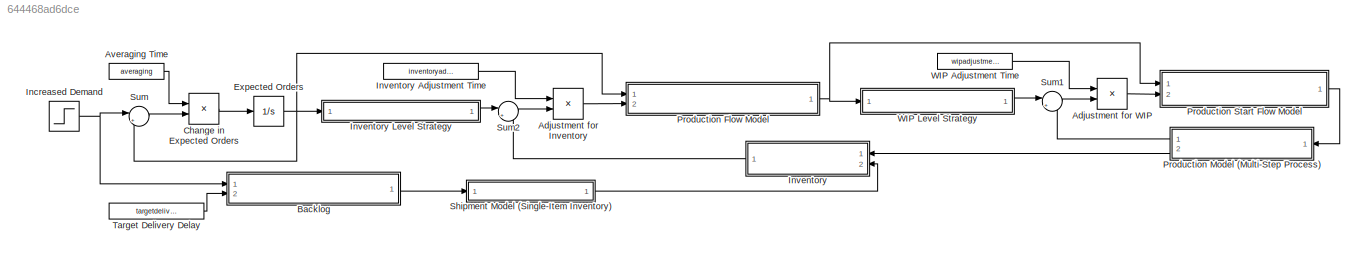
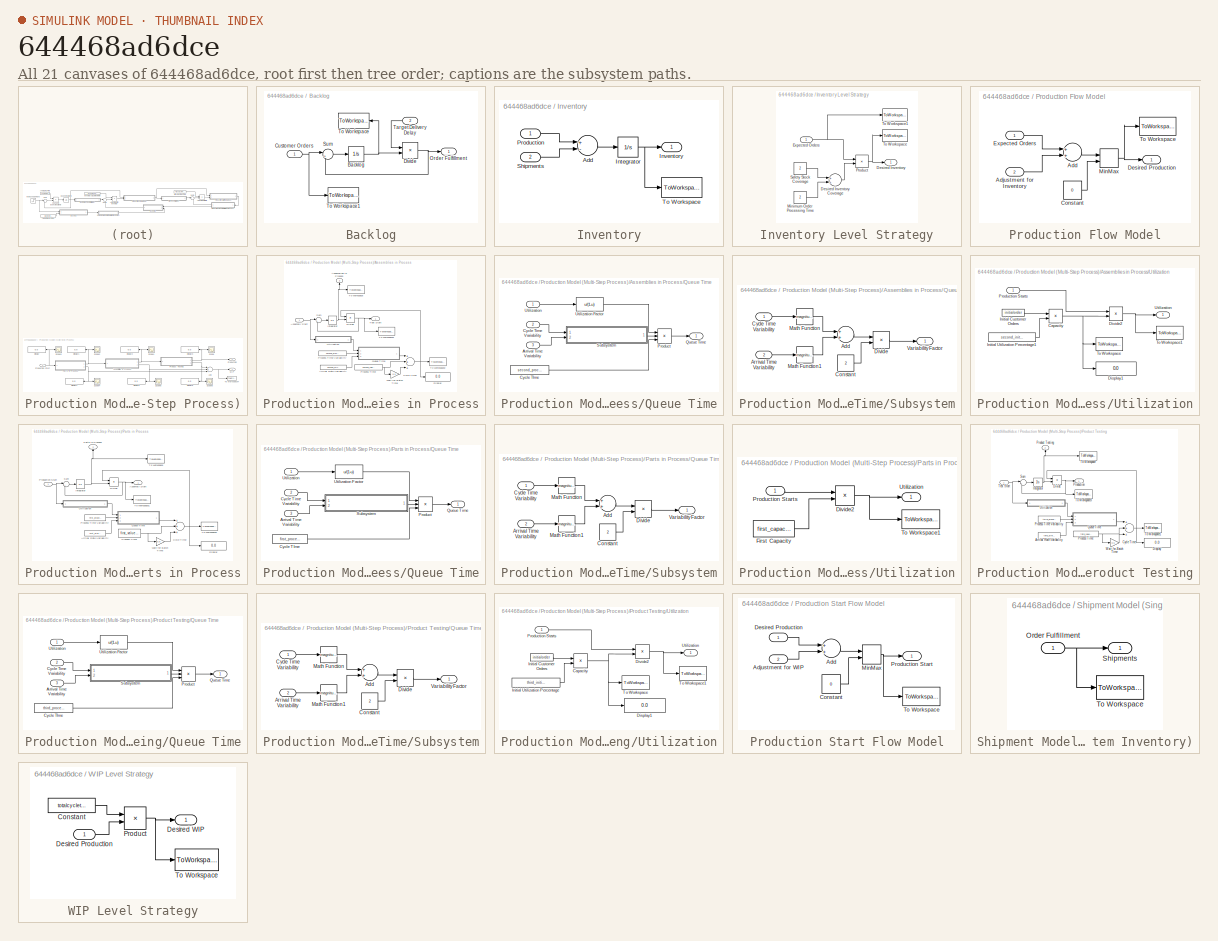
[diagram: thumbnail index - all 21 canvases of the model, root first then tree order]
MODEL slx_644468ad6dce
KIND model
CONFIG AbsTol = auto
CONFIG FixedStep = 0.1
CONFIG MaxStep = auto
CONFIG MinStep = auto
CONFIG RelTol = 1e-3
CONFIG SampleTimeConstraint = Unconstrained
CONFIG Solver = FixedStepAuto
CONFIG SolverMode = Auto
CONFIG SolverName = FixedStepAuto
CONFIG StartTime = 0.0
CONFIG StopTime = 40
BLOCK [Product] Adjustment for Inventory
  InputSameDT = off
  Inputs = /*
  OutDataTypeStr = Inherit: Inherit via internal rule
  Ports = [2, 1]
  RndMeth = Floor
  SaturateOnIntegerOverflow = off
BLOCK [Product] Adjustment for WIP
  InputSameDT = off
  Inputs = /*
  OutDataTypeStr = Inherit: Inherit via internal rule
  Ports = [2, 1]
  RndMeth = Floor
  SaturateOnIntegerOverflow = off
BLOCK [Constant] Averaging Time
  Value = averaging
BLOCK [SubSystem] Backlog
  Ports = [2, 1]
  RequestExecContextInheritance = off
  Variant = off
BLOCK [Integrator] Backlog/Backlog
  InitialCondition = 20000
  Ports = [1, 1]
BLOCK [Inport] Backlog/Customer Orders
  IconDisplay = Port number
BLOCK [Product] Backlog/Divide
  InputSameDT = off
  Inputs = /*
  OutDataTypeStr = Inherit: Inherit via internal rule
  Ports = [2, 1]
  RndMeth = Floor
  SaturateOnIntegerOverflow = off
BLOCK [Outport] Backlog/Order Fulfillment
  IconDisplay = Port number
BLOCK [Sum] Backlog/Sum
  IconShape = round
  InputSameDT = off
  Inputs = |+-
  OutDataTypeStr = Inherit: Inherit via internal rule
  Ports = [2, 1]
  SaturateOnIntegerOverflow = off
BLOCK [Inport] Backlog/Target Delivery Delay
  IconDisplay = Port number
  Port = 2
BLOCK [ToWorkspace] Backlog/To Workspace
  FixptAsFi = on
  MaxDataPoints = inf
  Ports = [1]
  SampleTime = -1
  Save2DSignal = 3-D array (concatenate along third dimension)
  SaveFormat = Timeseries
  VariableName = backlog
BLOCK [ToWorkspace] Backlog/To Workspace1
  FixptAsFi = on
  MaxDataPoints = inf
  Ports = [1]
  SampleTime = -1
  Save2DSignal = 3-D array (concatenate along third dimension)
  SaveFormat = Timeseries
  VariableName = customerorders
BLOCK [Product] Change in Expected Orders
  InputSameDT = off
  Inputs = /*
  OutDataTypeStr = Inherit: Inherit via internal rule
  Ports = [2, 1]
  RndMeth = Floor
  SaturateOnIntegerOverflow = off
BLOCK [Integrator] Expected Orders
  InitialCondition = 10000
  Ports = [1, 1]
BLOCK [Step] Increased Demand
  After = finalorder
  Before = initialorder
  SampleTime = 0.1
  Time = steptime
BLOCK [SubSystem] Inventory
  Ports = [2, 1]
  RequestExecContextInheritance = off
  Variant = off
BLOCK [Constant] Inventory  Adjustment Time
  Value = inventoryadjustment
BLOCK [SubSystem] Inventory Level Strategy
  Ports = [1, 1]
  RequestExecContextInheritance = off
  Variant = off
BLOCK [Outport] Inventory Level Strategy/Desired Inventory
  IconDisplay = Port number
BLOCK [Sum] Inventory Level Strategy/Desired Inventory Coverage
  InputSameDT = off
  OutDataTypeStr = Inherit: Inherit via internal rule
  Ports = [2, 1]
  SaturateOnIntegerOverflow = off
BLOCK [Inport] Inventory Level Strategy/Expected Orders
  IconDisplay = Port number
BLOCK [Constant] Inventory Level Strategy/Minimum Order Processing Time
  Value = 2
BLOCK [Product] Inventory Level Strategy/Product
  InputSameDT = off
  OutDataTypeStr = Inherit: Inherit via internal rule
  Ports = [2, 1]
  RndMeth = Floor
  SaturateOnIntegerOverflow = off
BLOCK [Constant] Inventory Level Strategy/Safety Stock Coverage
  Value = 2
BLOCK [ToWorkspace] Inventory Level Strategy/To Workspace
  FixptAsFi = on
  MaxDataPoints = inf
  Ports = [1]
  SampleTime = -1
  Save2DSignal = 3-D array (concatenate along third dimension)
  SaveFormat = Timeseries
  VariableName = desiredinventory
BLOCK [ToWorkspace] Inventory Level Strategy/To Workspace1
  FixptAsFi = on
  MaxDataPoints = inf
  Ports = [1]
  SampleTime = -1
  Save2DSignal = 3-D array (concatenate along third dimension)
  SaveFormat = Timeseries
  VariableName = expectedorders
BLOCK [Sum] Inventory/Add
  InputSameDT = off
  Inputs = +-
  OutDataTypeStr = Inherit: Inherit via internal rule
  Ports = [2, 1]
  SaturateOnIntegerOverflow = off
BLOCK [Integrator] Inventory/Integrator
  InitialCondition = 40000
  Ports = [1, 1]
BLOCK [Outport] Inventory/Inventory
  IconDisplay = Port number
BLOCK [Inport] Inventory/Production
  IconDisplay = Port number
BLOCK [Inport] Inventory/Shipments
  IconDisplay = Port number
  Port = 2
BLOCK [ToWorkspace] Inventory/To Workspace
  FixptAsFi = on
  MaxDataPoints = inf
  Ports = [1]
  SampleTime = -1
  Save2DSignal = 3-D array (concatenate along third dimension)
  SaveFormat = Timeseries
  VariableName = inventory
BLOCK [SubSystem] Production Flow Model
  Ports = [2, 1]
  RequestExecContextInheritance = off
  Variant = off
BLOCK [Sum] Production Flow Model/Add
  InputSameDT = off
  OutDataTypeStr = Inherit: Inherit via internal rule
  Ports = [2, 1]
  SaturateOnIntegerOverflow = off
BLOCK [Inport] Production Flow Model/Adjustment for Inventory
  IconDisplay = Port number
  Port = 2
BLOCK [Constant] Production Flow Model/Constant
  Value = 0
BLOCK [Outport] Production Flow Model/Desired Production
  IconDisplay = Port number
BLOCK [Inport] Production Flow Model/Expected Orders
  IconDisplay = Port number
BLOCK [MinMax] Production Flow Model/MinMax
  Function = max
  InputSameDT = off
  Inputs = 2
  Ports = [2, 1]
  SaturateOnIntegerOverflow = off
BLOCK [ToWorkspace] Production Flow Model/To Workspace
  FixptAsFi = on
  MaxDataPoints = inf
  Ports = [1]
  SampleTime = -1
  Save2DSignal = 3-D array (concatenate along third dimension)
  SaveFormat = Timeseries
  VariableName = desiredproduction
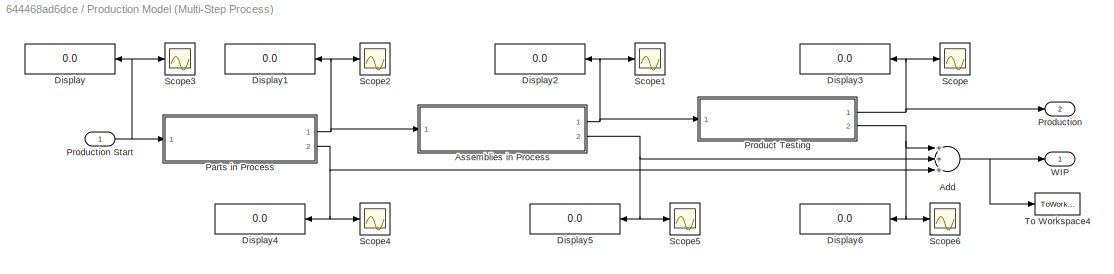
BLOCK [SubSystem] Production Model (Multi-Step Process)
  Ports = [1, 2]
  RequestExecContextInheritance = off
  Variant = off
BLOCK [Sum] Production Model (Multi-Step Process)/Add
  InputSameDT = off
  Inputs = +++
  OutDataTypeStr = Inherit: Inherit via internal rule
  Ports = [3, 1]
  SaturateOnIntegerOverflow = off
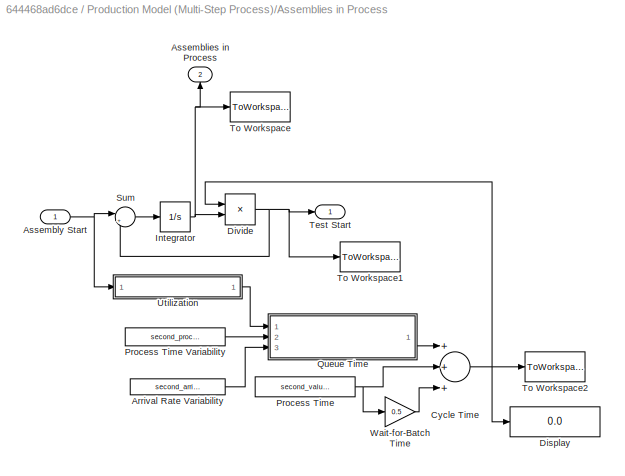
BLOCK [SubSystem] Production Model (Multi-Step Process)/Assemblies in Process
  Ports = [1, 2]
  RequestExecContextInheritance = off
  Variant = off
BLOCK [Constant] Production Model (Multi-Step Process)/Assemblies in Process/Arrival Rate Variability
  Value = second_arrivalvar
BLOCK [Outport] Production Model (Multi-Step Process)/Assemblies in Process/Assemblies in Process
  IconDisplay = Port number
  Port = 2
BLOCK [Inport] Production Model (Multi-Step Process)/Assemblies in Process/Assembly Start
  IconDisplay = Port number
BLOCK [Sum] Production Model (Multi-Step Process)/Assemblies in Process/Cycle Time
  InputSameDT = off
  Inputs = +++
  OutDataTypeStr = Inherit: Inherit via internal rule
  Ports = [3, 1]
  SaturateOnIntegerOverflow = off
BLOCK [Display] Production Model (Multi-Step Process)/Assemblies in Process/Display
  Decimation = 1
  Ports = [1]
BLOCK [Product] Production Model (Multi-Step Process)/Assemblies in Process/Divide
  InputSameDT = off
  Inputs = /*
  OutDataTypeStr = Inherit: Inherit via internal rule
  Ports = [2, 1]
  RndMeth = Floor
  SaturateOnIntegerOverflow = off
BLOCK [Integrator] Production Model (Multi-Step Process)/Assemblies in Process/Integrator
  InitialCondition = initialorder*totalcycletime/3
  Ports = [1, 1]
BLOCK [Constant] Production Model (Multi-Step Process)/Assemblies in Process/Process Time
  Value = second_valueaddtime
BLOCK [Constant] Production Model (Multi-Step Process)/Assemblies in Process/Process Time Variability
  Value = second_processvar
BLOCK [SubSystem] Production Model (Multi-Step Process)/Assemblies in Process/Queue Time
  Ports = [3, 1]
  RequestExecContextInheritance = off
  Variant = off
BLOCK [Inport] Production Model (Multi-Step Process)/Assemblies in Process/Queue Time/Arrival Time Variability
  IconDisplay = Port number
  Port = 3
BLOCK [Constant] Production Model (Multi-Step Process)/Assemblies in Process/Queue Time/Cycle TIme
  Value = second_processtime
BLOCK [Inport] Production Model (Multi-Step Process)/Assemblies in Process/Queue Time/Cycle Time Variability
  IconDisplay = Port number
  Port = 2
BLOCK [Product] Production Model (Multi-Step Process)/Assemblies in Process/Queue Time/Product
  InputSameDT = off
  Inputs = 3
  OutDataTypeStr = Inherit: Inherit via internal rule
  Ports = [3, 1]
  RndMeth = Floor
  SaturateOnIntegerOverflow = off
BLOCK [Outport] Production Model (Multi-Step Process)/Assemblies in Process/Queue Time/Queue Time
  IconDisplay = Port number
BLOCK [SubSystem] Production Model (Multi-Step Process)/Assemblies in Process/Queue Time/Subsystem
  Ports = [2, 1]
  RequestExecContextInheritance = off
  Variant = off
BLOCK [Sum] Production Model (Multi-Step Process)/Assemblies in Process/Queue Time/Subsystem/Add
  InputSameDT = off
  OutDataTypeStr = Inherit: Inherit via internal rule
  Ports = [2, 1]
  SaturateOnIntegerOverflow = off
BLOCK [Inport] Production Model (Multi-Step Process)/Assemblies in Process/Queue Time/Subsystem/Arrival Time Variability
  IconDisplay = Port number
  Port = 2
BLOCK [Constant] Production Model (Multi-Step Process)/Assemblies in Process/Queue Time/Subsystem/Constant
  Value = 2
BLOCK [Inport] Production Model (Multi-Step Process)/Assemblies in Process/Queue Time/Subsystem/Cycle Time Variability
  IconDisplay = Port number
BLOCK [Product] Production Model (Multi-Step Process)/Assemblies in Process/Queue Time/Subsystem/Divide
  InputSameDT = off
  Inputs = */
  OutDataTypeStr = Inherit: Inherit via internal rule
  Ports = [2, 1]
  RndMeth = Floor
  SaturateOnIntegerOverflow = off
BLOCK [Math] Production Model (Multi-Step Process)/Assemblies in Process/Queue Time/Subsystem/Math Function
  Operator = magnitude^2
  Ports = [1, 1]
BLOCK [Math] Production Model (Multi-Step Process)/Assemblies in Process/Queue Time/Subsystem/Math Function1
  Operator = magnitude^2
  Ports = [1, 1]
BLOCK [Outport] Production Model (Multi-Step Process)/Assemblies in Process/Queue Time/Subsystem/Variability Factor
  IconDisplay = Port number
BLOCK [Inport] Production Model (Multi-Step Process)/Assemblies in Process/Queue Time/Utilization
  IconDisplay = Port number
BLOCK [Fcn] Production Model (Multi-Step Process)/Assemblies in Process/Queue Time/Utilization Factor
  Expr = u/(1-u)
BLOCK [Sum] Production Model (Multi-Step Process)/Assemblies in Process/Sum
  IconShape = round
  InputSameDT = off
  Inputs = |+-
  OutDataTypeStr = Inherit: Inherit via internal rule
  Ports = [2, 1]
  SaturateOnIntegerOverflow = off
BLOCK [Outport] Production Model (Multi-Step Process)/Assemblies in Process/Test Start
  IconDisplay = Port number
BLOCK [ToWorkspace] Production Model (Multi-Step Process)/Assemblies in Process/To Workspace
  FixptAsFi = on
  MaxDataPoints = inf
  Ports = [1]
  SampleTime = -1
  Save2DSignal = 3-D array (concatenate along third dimension)
  SaveFormat = Timeseries
  VariableName = second_productionstep
BLOCK [ToWorkspace] Production Model (Multi-Step Process)/Assemblies in Process/To Workspace1
  FixptAsFi = on
  MaxDataPoints = inf
  Ports = [1]
  SampleTime = -1
  Save2DSignal = 3-D array (concatenate along third dimension)
  SaveFormat = Timeseries
  VariableName = second_outflow
BLOCK [ToWorkspace] Production Model (Multi-Step Process)/Assemblies in Process/To Workspace2
  FixptAsFi = on
  MaxDataPoints = inf
  Ports = [1]
  SampleTime = -1
  Save2DSignal = 3-D array (concatenate along third dimension)
  SaveFormat = Timeseries
  VariableName = second_cycletime
BLOCK [SubSystem] Production Model (Multi-Step Process)/Assemblies in Process/Utilization
  Ports = [1, 1]
  RequestExecContextInheritance = off
  Variant = off
BLOCK [Product] Production Model (Multi-Step Process)/Assemblies in Process/Utilization/Capacity
  InputSameDT = off
  Inputs = */
  OutDataTypeStr = Inherit: Inherit via internal rule
  Ports = [2, 1]
  RndMeth = Floor
  SaturateOnIntegerOverflow = off
BLOCK [Display] Production Model (Multi-Step Process)/Assemblies in Process/Utilization/Display1
  Decimation = 1
  Ports = [1]
BLOCK [Product] Production Model (Multi-Step Process)/Assemblies in Process/Utilization/Divide2
  InputSameDT = off
  Inputs = */
  OutDataTypeStr = Inherit: Inherit via internal rule
  Ports = [2, 1]
  RndMeth = Floor
  SaturateOnIntegerOverflow = off
BLOCK [Constant] Production Model (Multi-Step Process)/Assemblies in Process/Utilization/Initial Customer Orders
  Value = initialorder
BLOCK [Constant] Production Model (Multi-Step Process)/Assemblies in Process/Utilization/Initial Utilization Percentage1
  Value = second_initialcapacity
BLOCK [Inport] Production Model (Multi-Step Process)/Assemblies in Process/Utilization/Production Starts
  IconDisplay = Port number
BLOCK [ToWorkspace] Production Model (Multi-Step Process)/Assemblies in Process/Utilization/To Workspace
  FixptAsFi = on
  MaxDataPoints = inf
  Ports = [1]
  SampleTime = -1
  Save2DSignal = 3-D array (concatenate along third dimension)
  SaveFormat = Timeseries
  VariableName = second_capacity
BLOCK [ToWorkspace] Production Model (Multi-Step Process)/Assemblies in Process/Utilization/To Workspace1
  FixptAsFi = on
  MaxDataPoints = inf
  Ports = [1]
  SampleTime = -1
  Save2DSignal = 3-D array (concatenate along third dimension)
  SaveFormat = Timeseries
  VariableName = second_utilization
BLOCK [Outport] Production Model (Multi-Step Process)/Assemblies in Process/Utilization/Utilization
  IconDisplay = Port number
BLOCK [Gain] Production Model (Multi-Step Process)/Assemblies in Process/Wait-for-Batch Time
  Gain = 0.5
  OutDataTypeStr = Inherit: Inherit via internal rule
  ParamDataTypeStr = Inherit: Inherit via internal rule
  SaturateOnIntegerOverflow = off
BLOCK [Display] Production Model (Multi-Step Process)/Display
  Decimation = 1
  Ports = [1]
BLOCK [Display] Production Model (Multi-Step Process)/Display1
  Decimation = 1
  Ports = [1]
BLOCK [Display] Production Model (Multi-Step Process)/Display2
  Decimation = 1
  Ports = [1]
BLOCK [Display] Production Model (Multi-Step Process)/Display3
  Decimation = 1
  Ports = [1]
BLOCK [Display] Production Model (Multi-Step Process)/Display4
  Decimation = 1
  Ports = [1]
BLOCK [Display] Production Model (Multi-Step Process)/Display5
  Decimation = 1
  Ports = [1]
BLOCK [Display] Production Model (Multi-Step Process)/Display6
  Decimation = 1
  Ports = [1]
BLOCK [SubSystem] Production Model (Multi-Step Process)/Parts in Process
  Ports = [1, 2]
  RequestExecContextInheritance = off
  Variant = off
BLOCK [Constant] Production Model (Multi-Step Process)/Parts in Process/Arrival Rate Variability
  Value = first_arrivalvar
BLOCK [Outport] Production Model (Multi-Step Process)/Parts in Process/Assembly Start
  IconDisplay = Port number
BLOCK [Sum] Production Model (Multi-Step Process)/Parts in Process/Cycle Time
  InputSameDT = off
  Inputs = +++
  OutDataTypeStr = Inherit: Inherit via internal rule
  Ports = [3, 1]
  SaturateOnIntegerOverflow = off
BLOCK [Display] Production Model (Multi-Step Process)/Parts in Process/Display
  Decimation = 1
  Ports = [1]
BLOCK [Product] Production Model (Multi-Step Process)/Parts in Process/Divide
  InputSameDT = off
  Inputs = /*
  OutDataTypeStr = Inherit: Inherit via internal rule
  Ports = [2, 1]
  RndMeth = Floor
  SaturateOnIntegerOverflow = off
BLOCK [Integrator] Production Model (Multi-Step Process)/Parts in Process/Integrator
  InitialCondition = initialorder*totalcycletime/3
  Ports = [1, 1]
BLOCK [Outport] Production Model (Multi-Step Process)/Parts in Process/Parts in Process
  IconDisplay = Port number
  Port = 2
BLOCK [Constant] Production Model (Multi-Step Process)/Parts in Process/Process Time
  Value = first_valueaddtime
BLOCK [Constant] Production Model (Multi-Step Process)/Parts in Process/Process Time Variability
  Value = first_processvar
BLOCK [Inport] Production Model (Multi-Step Process)/Parts in Process/Production Start
  IconDisplay = Port number
BLOCK [SubSystem] Production Model (Multi-Step Process)/Parts in Process/Queue Time
  Ports = [3, 1]
  RequestExecContextInheritance = off
  Variant = off
BLOCK [Inport] Production Model (Multi-Step Process)/Parts in Process/Queue Time/Arrival Time Variability
  IconDisplay = Port number
  Port = 3
BLOCK [Constant] Production Model (Multi-Step Process)/Parts in Process/Queue Time/Cycle TIme
  Value = first_processtime
BLOCK [Inport] Production Model (Multi-Step Process)/Parts in Process/Queue Time/Cycle Time Variability
  IconDisplay = Port number
  Port = 2
BLOCK [Product] Production Model (Multi-Step Process)/Parts in Process/Queue Time/Product
  InputSameDT = off
  Inputs = 3
  OutDataTypeStr = Inherit: Inherit via internal rule
  Ports = [3, 1]
  RndMeth = Floor
  SaturateOnIntegerOverflow = off
BLOCK [Outport] Production Model (Multi-Step Process)/Parts in Process/Queue Time/Queue Time
  IconDisplay = Port number
BLOCK [SubSystem] Production Model (Multi-Step Process)/Parts in Process/Queue Time/Subsystem
  Ports = [2, 1]
  RequestExecContextInheritance = off
  Variant = off
BLOCK [Sum] Production Model (Multi-Step Process)/Parts in Process/Queue Time/Subsystem/Add
  InputSameDT = off
  OutDataTypeStr = Inherit: Inherit via internal rule
  Ports = [2, 1]
  SaturateOnIntegerOverflow = off
BLOCK [Inport] Production Model (Multi-Step Process)/Parts in Process/Queue Time/Subsystem/Arrival Time Variability
  IconDisplay = Port number
  Port = 2
BLOCK [Constant] Production Model (Multi-Step Process)/Parts in Process/Queue Time/Subsystem/Constant
  Value = 2
BLOCK [Inport] Production Model (Multi-Step Process)/Parts in Process/Queue Time/Subsystem/Cycle Time Variability
  IconDisplay = Port number
BLOCK [Product] Production Model (Multi-Step Process)/Parts in Process/Queue Time/Subsystem/Divide
  InputSameDT = off
  Inputs = */
  OutDataTypeStr = Inherit: Inherit via internal rule
  Ports = [2, 1]
  RndMeth = Floor
  SaturateOnIntegerOverflow = off
BLOCK [Math] Production Model (Multi-Step Process)/Parts in Process/Queue Time/Subsystem/Math Function
  Operator = magnitude^2
  Ports = [1, 1]
BLOCK [Math] Production Model (Multi-Step Process)/Parts in Process/Queue Time/Subsystem/Math Function1
  Operator = magnitude^2
  Ports = [1, 1]
BLOCK [Outport] Production Model (Multi-Step Process)/Parts in Process/Queue Time/Subsystem/Variability Factor
  IconDisplay = Port number
BLOCK [Inport] Production Model (Multi-Step Process)/Parts in Process/Queue Time/Utilization
  IconDisplay = Port number
BLOCK [Fcn] Production Model (Multi-Step Process)/Parts in Process/Queue Time/Utilization Factor
  Expr = u/(1-u)
BLOCK [Sum] Production Model (Multi-Step Process)/Parts in Process/Sum
  IconShape = round
  InputSameDT = off
  Inputs = |+-
  OutDataTypeStr = Inherit: Inherit via internal rule
  Ports = [2, 1]
  SaturateOnIntegerOverflow = off
BLOCK [ToWorkspace] Production Model (Multi-Step Process)/Parts in Process/To Workspace
  FixptAsFi = on
  MaxDataPoints = inf
  Ports = [1]
  SampleTime = -1
  Save2DSignal = 3-D array (concatenate along third dimension)
  SaveFormat = Timeseries
  VariableName = first_productionstep
BLOCK [ToWorkspace] Production Model (Multi-Step Process)/Parts in Process/To Workspace1
  FixptAsFi = on
  MaxDataPoints = inf
  Ports = [1]
  SampleTime = -1
  Save2DSignal = 3-D array (concatenate along third dimension)
  SaveFormat = Timeseries
  VariableName = first_outflow
BLOCK [ToWorkspace] Production Model (Multi-Step Process)/Parts in Process/To Workspace2
  FixptAsFi = on
  MaxDataPoints = inf
  Ports = [1]
  SampleTime = -1
  Save2DSignal = 3-D array (concatenate along third dimension)
  SaveFormat = Timeseries
  VariableName = first_cycletime
BLOCK [SubSystem] Production Model (Multi-Step Process)/Parts in Process/Utilization
  Ports = [1, 1]
  RequestExecContextInheritance = off
  Variant = off
BLOCK [Product] Production Model (Multi-Step Process)/Parts in Process/Utilization/Divide2
  InputSameDT = off
  Inputs = */
  OutDataTypeStr = Inherit: Inherit via internal rule
  Ports = [2, 1]
  RndMeth = Floor
  SaturateOnIntegerOverflow = off
BLOCK [Constant] Production Model (Multi-Step Process)/Parts in Process/Utilization/First Capacity
  Value = first_capacity
BLOCK [Inport] Production Model (Multi-Step Process)/Parts in Process/Utilization/Production Starts
  IconDisplay = Port number
BLOCK [ToWorkspace] Production Model (Multi-Step Process)/Parts in Process/Utilization/To Workspace1
  FixptAsFi = on
  MaxDataPoints = inf
  Ports = [1]
  SampleTime = -1
  Save2DSignal = 3-D array (concatenate along third dimension)
  SaveFormat = Timeseries
  VariableName = first_utilization
BLOCK [Outport] Production Model (Multi-Step Process)/Parts in Process/Utilization/Utilization
  IconDisplay = Port number
BLOCK [Gain] Production Model (Multi-Step Process)/Parts in Process/Wait-for-Batch Time
  Gain = 0.5
  OutDataTypeStr = Inherit: Inherit via internal rule
  ParamDataTypeStr = Inherit: Inherit via internal rule
  SaturateOnIntegerOverflow = off
BLOCK [SubSystem] Production Model (Multi-Step Process)/Product Testing
  Ports = [1, 2]
  RequestExecContextInheritance = off
  Variant = off
BLOCK [Constant] Production Model (Multi-Step Process)/Product Testing/Arrival Rate Variability
  Value = third_arrivalvar
BLOCK [Sum] Production Model (Multi-Step Process)/Product Testing/Cycle Time
  InputSameDT = off
  Inputs = +++
  OutDataTypeStr = Inherit: Inherit via internal rule
  Ports = [3, 1]
  SaturateOnIntegerOverflow = off
BLOCK [Display] Production Model (Multi-Step Process)/Product Testing/Display
  Decimation = 1
  Ports = [1]
BLOCK [Product] Production Model (Multi-Step Process)/Product Testing/Divide
  InputSameDT = off
  Inputs = /*
  OutDataTypeStr = Inherit: Inherit via internal rule
  Ports = [2, 1]
  RndMeth = Floor
  SaturateOnIntegerOverflow = off
BLOCK [Integrator] Production Model (Multi-Step Process)/Product Testing/Integrator
  InitialCondition = initialorder*totalcycletime/3
  Ports = [1, 1]
BLOCK [Constant] Production Model (Multi-Step Process)/Product Testing/Process Time
  Value = third_valueaddtime
BLOCK [Constant] Production Model (Multi-Step Process)/Product Testing/Process Time Variability
  Value = third_processvar
BLOCK [Outport] Production Model (Multi-Step Process)/Product Testing/Product Testing
  IconDisplay = Port number
  Port = 2
BLOCK [Outport] Production Model (Multi-Step Process)/Product Testing/Production
  IconDisplay = Port number
BLOCK [SubSystem] Production Model (Multi-Step Process)/Product Testing/Queue Time
  Ports = [3, 1]
  RequestExecContextInheritance = off
  Variant = off
BLOCK [Inport] Production Model (Multi-Step Process)/Product Testing/Queue Time/Arrival Time Variability
  IconDisplay = Port number
  Port = 3
BLOCK [Constant] Production Model (Multi-Step Process)/Product Testing/Queue Time/Cycle TIme
  Value = third_processtime
BLOCK [Inport] Production Model (Multi-Step Process)/Product Testing/Queue Time/Cycle Time Variability
  IconDisplay = Port number
  Port = 2
BLOCK [Product] Production Model (Multi-Step Process)/Product Testing/Queue Time/Product
  InputSameDT = off
  Inputs = 3
  OutDataTypeStr = Inherit: Inherit via internal rule
  Ports = [3, 1]
  RndMeth = Floor
  SaturateOnIntegerOverflow = off
BLOCK [Outport] Production Model (Multi-Step Process)/Product Testing/Queue Time/Queue Time
  IconDisplay = Port number
BLOCK [SubSystem] Production Model (Multi-Step Process)/Product Testing/Queue Time/Subsystem
  Ports = [2, 1]
  RequestExecContextInheritance = off
  Variant = off
BLOCK [Sum] Production Model (Multi-Step Process)/Product Testing/Queue Time/Subsystem/Add
  InputSameDT = off
  OutDataTypeStr = Inherit: Inherit via internal rule
  Ports = [2, 1]
  SaturateOnIntegerOverflow = off
BLOCK [Inport] Production Model (Multi-Step Process)/Product Testing/Queue Time/Subsystem/Arrival Time Variability
  IconDisplay = Port number
  Port = 2
BLOCK [Constant] Production Model (Multi-Step Process)/Product Testing/Queue Time/Subsystem/Constant
  Value = 2
BLOCK [Inport] Production Model (Multi-Step Process)/Product Testing/Queue Time/Subsystem/Cycle Time Variability
  IconDisplay = Port number
BLOCK [Product] Production Model (Multi-Step Process)/Product Testing/Queue Time/Subsystem/Divide
  InputSameDT = off
  Inputs = */
  OutDataTypeStr = Inherit: Inherit via internal rule
  Ports = [2, 1]
  RndMeth = Floor
  SaturateOnIntegerOverflow = off
BLOCK [Math] Production Model (Multi-Step Process)/Product Testing/Queue Time/Subsystem/Math Function
  Operator = magnitude^2
  Ports = [1, 1]
BLOCK [Math] Production Model (Multi-Step Process)/Product Testing/Queue Time/Subsystem/Math Function1
  Operator = magnitude^2
  Ports = [1, 1]
BLOCK [Outport] Production Model (Multi-Step Process)/Product Testing/Queue Time/Subsystem/Variability Factor
  IconDisplay = Port number
BLOCK [Inport] Production Model (Multi-Step Process)/Product Testing/Queue Time/Utilization
  IconDisplay = Port number
BLOCK [Fcn] Production Model (Multi-Step Process)/Product Testing/Queue Time/Utilization Factor
  Expr = u/(1-u)
BLOCK [Sum] Production Model (Multi-Step Process)/Product Testing/Sum
  IconShape = round
  InputSameDT = off
  Inputs = |+-
  OutDataTypeStr = Inherit: Inherit via internal rule
  Ports = [2, 1]
  SaturateOnIntegerOverflow = off
BLOCK [Inport] Production Model (Multi-Step Process)/Product Testing/Test Start
  IconDisplay = Port number
BLOCK [ToWorkspace] Production Model (Multi-Step Process)/Product Testing/To Workspace
  FixptAsFi = on
  MaxDataPoints = inf
  Ports = [1]
  SampleTime = -1
  Save2DSignal = 3-D array (concatenate along third dimension)
  SaveFormat = Timeseries
  VariableName = third_productionstep
BLOCK [ToWorkspace] Production Model (Multi-Step Process)/Product Testing/To Workspace1
  FixptAsFi = on
  MaxDataPoints = inf
  Ports = [1]
  SampleTime = -1
  Save2DSignal = 3-D array (concatenate along third dimension)
  SaveFormat = Timeseries
  VariableName = third_cycletime
BLOCK [ToWorkspace] Production Model (Multi-Step Process)/Product Testing/To Workspace3
  FixptAsFi = on
  MaxDataPoints = inf
  Ports = [1]
  SampleTime = -1
  Save2DSignal = 3-D array (concatenate along third dimension)
  SaveFormat = Timeseries
  VariableName = production
BLOCK [SubSystem] Production Model (Multi-Step Process)/Product Testing/Utilization
  Ports = [1, 1]
  RequestExecContextInheritance = off
  Variant = off
BLOCK [Product] Production Model (Multi-Step Process)/Product Testing/Utilization/Capacity
  InputSameDT = off
  Inputs = */
  OutDataTypeStr = Inherit: Inherit via internal rule
  Ports = [2, 1]
  RndMeth = Floor
  SaturateOnIntegerOverflow = off
BLOCK [Display] Production Model (Multi-Step Process)/Product Testing/Utilization/Display1
  Decimation = 1
  Ports = [1]
BLOCK [Product] Production Model (Multi-Step Process)/Product Testing/Utilization/Divide2
  InputSameDT = off
  Inputs = */
  OutDataTypeStr = Inherit: Inherit via internal rule
  Ports = [2, 1]
  RndMeth = Floor
  SaturateOnIntegerOverflow = off
BLOCK [Constant] Production Model (Multi-Step Process)/Product Testing/Utilization/Initial Customer Orders
  Value = initialorder
BLOCK [Constant] Production Model (Multi-Step Process)/Product Testing/Utilization/Initial Utilization Percentage
  Value = third_initialcapacity
BLOCK [Inport] Production Model (Multi-Step Process)/Product Testing/Utilization/Production Starts
  IconDisplay = Port number
BLOCK [ToWorkspace] Production Model (Multi-Step Process)/Product Testing/Utilization/To Workspace
  FixptAsFi = on
  MaxDataPoints = inf
  Ports = [1]
  SampleTime = -1
  Save2DSignal = 3-D array (concatenate along third dimension)
  SaveFormat = Timeseries
  VariableName = third_capacity
BLOCK [ToWorkspace] Production Model (Multi-Step Process)/Product Testing/Utilization/To Workspace1
  FixptAsFi = on
  MaxDataPoints = inf
  Ports = [1]
  SampleTime = -1
  Save2DSignal = 3-D array (concatenate along third dimension)
  SaveFormat = Timeseries
  VariableName = third_utilization
BLOCK [Outport] Production Model (Multi-Step Process)/Product Testing/Utilization/Utilization
  IconDisplay = Port number
BLOCK [Gain] Production Model (Multi-Step Process)/Product Testing/Wait-for-Batch Time
  Gain = 0.5
  OutDataTypeStr = Inherit: Inherit via internal rule
  ParamDataTypeStr = Inherit: Inherit via internal rule
  SaturateOnIntegerOverflow = off
BLOCK [Outport] Production Model (Multi-Step Process)/Production
  IconDisplay = Port number
  Port = 2
BLOCK [Inport] Production Model (Multi-Step Process)/Production Start
  IconDisplay = Port number
BLOCK [Scope] Production Model (Multi-Step Process)/Scope
  Ports = [1]
  ScopeSpecificationString = Simulink.scopes.TimeScopeBlockCfg('CurrentConfiguration', extmgr.ConfigurationSet(extmgr.Configuration('Core','General UI',true),extmgr.Configuration('Core','Source UI',true),extmgr.Configuration('Sources','WiredSimulink',true),extmgr.Configuration('Visuals','Time Domain',true,'SerializedDisplays',{struct('MinYLimReal','9625.73265','MaxYLimReal','13368.40615','YLabelReal','','MinYLimMag','9625.732...<+1363ch>
BLOCK [Scope] Production Model (Multi-Step Process)/Scope1
  Ports = [1]
  ScopeSpecificationString = Simulink.scopes.TimeScopeBlockCfg('CurrentConfiguration', extmgr.ConfigurationSet(extmgr.Configuration('Core','General UI',true),extmgr.Configuration('Core','Source UI',true),extmgr.Configuration('Sources','WiredSimulink',true,'DataLoggingVariableName','ScopeData1'),extmgr.Configuration('Visuals','Time Domain',true,'SerializedDisplays',{struct('MinYLimReal','9610.08845','MaxYLimReal','13509.20396'...<+1408ch>
BLOCK [Scope] Production Model (Multi-Step Process)/Scope2
  Ports = [1]
  ScopeSpecificationString = Simulink.scopes.TimeScopeBlockCfg('CurrentConfiguration', extmgr.ConfigurationSet(extmgr.Configuration('Core','General UI',true),extmgr.Configuration('Core','Source UI',true),extmgr.Configuration('Sources','WiredSimulink',true,'DataLoggingVariableName','ScopeData2'),extmgr.Configuration('Visuals','Time Domain',true,'SerializedDisplays',{struct('MinYLimReal','9588.89295','MaxYLimReal','13699.96344'...<+1403ch>
BLOCK [Scope] Production Model (Multi-Step Process)/Scope3
  Ports = [1]
  ScopeSpecificationString = Simulink.scopes.TimeScopeBlockCfg('CurrentConfiguration', extmgr.ConfigurationSet(extmgr.Configuration('Core','General UI',true),extmgr.Configuration('Core','Source UI',true),extmgr.Configuration('Sources','WiredSimulink',true,'DataLoggingVariableName','ScopeData3'),extmgr.Configuration('Visuals','Time Domain',true,'SerializedDisplays',{struct('MinYLimReal','9556.09037','MaxYLimReal','13995.18668'...<+1401ch>
BLOCK [Scope] Production Model (Multi-Step Process)/Scope4
  Ports = [1]
  ScopeSpecificationString = Simulink.scopes.TimeScopeBlockCfg('CurrentConfiguration', extmgr.ConfigurationSet(extmgr.Configuration('Core','General UI',true),extmgr.Configuration('Core','Source UI',true),extmgr.Configuration('Sources','WiredSimulink',true,'DataLoggingVariableName','ScopeData1'),extmgr.Configuration('Visuals','Time Domain',true,'SerializedDisplays',{struct('MinYLimReal','21574.76591','MaxYLimReal','30827.10685...<+1407ch>
BLOCK [Scope] Production Model (Multi-Step Process)/Scope5
  Ports = [1]
  ScopeSpecificationString = Simulink.scopes.TimeScopeBlockCfg('CurrentConfiguration', extmgr.ConfigurationSet(extmgr.Configuration('Core','General UI',true),extmgr.Configuration('Core','Source UI',true),extmgr.Configuration('Sources','WiredSimulink',true,'DataLoggingVariableName','ScopeData2'),extmgr.Configuration('Visuals','Time Domain',true,'SerializedDisplays',{struct('MinYLimReal','21622.72297','MaxYLimReal','30395.49323...<+1412ch>
BLOCK [Scope] Production Model (Multi-Step Process)/Scope6
  Ports = [1]
  ScopeSpecificationString = Simulink.scopes.TimeScopeBlockCfg('CurrentConfiguration', extmgr.ConfigurationSet(extmgr.Configuration('Core','General UI',true),extmgr.Configuration('Core','Source UI',true),extmgr.Configuration('Sources','WiredSimulink',true,'DataLoggingVariableName','ScopeData3'),extmgr.Configuration('Visuals','Time Domain',true,'SerializedDisplays',{struct('MinYLimReal','21657.54185','MaxYLimReal','30082.12338...<+1406ch>
BLOCK [ToWorkspace] Production Model (Multi-Step Process)/To Workspace4
  FixptAsFi = on
  MaxDataPoints = inf
  Ports = [1]
  SampleTime = -1
  Save2DSignal = 3-D array (concatenate along third dimension)
  SaveFormat = Timeseries
  VariableName = wip
BLOCK [Outport] Production Model (Multi-Step Process)/WIP
  IconDisplay = Port number
BLOCK [SubSystem] Production Start Flow Model
  Ports = [2, 1]
  RequestExecContextInheritance = off
  Variant = off
BLOCK [Sum] Production Start Flow Model/Add
  InputSameDT = off
  OutDataTypeStr = Inherit: Inherit via internal rule
  Ports = [2, 1]
  SaturateOnIntegerOverflow = off
BLOCK [Inport] Production Start Flow Model/Adjustment for WIP
  IconDisplay = Port number
  Port = 2
BLOCK [Constant] Production Start Flow Model/Constant
  Value = 0
BLOCK [Inport] Production Start Flow Model/Desired Production 
  IconDisplay = Port number
BLOCK [MinMax] Production Start Flow Model/MinMax
  Function = max
  InputSameDT = off
  Inputs = 2
  Ports = [2, 1]
  SaturateOnIntegerOverflow = off
BLOCK [Outport] Production Start Flow Model/Production Start
  IconDisplay = Port number
BLOCK [ToWorkspace] Production Start Flow Model/To Workspace
  FixptAsFi = on
  MaxDataPoints = inf
  Ports = [1]
  SampleTime = -1
  Save2DSignal = 3-D array (concatenate along third dimension)
  SaveFormat = Timeseries
  VariableName = productionstart
BLOCK [SubSystem] Shipment Model (Single-Item Inventory)
  Ports = [1, 1]
  RequestExecContextInheritance = off
  Variant = off
BLOCK [Inport] Shipment Model (Single-Item Inventory)/Order Fulfillment
  IconDisplay = Port number
BLOCK [Outport] Shipment Model (Single-Item Inventory)/Shipments
  IconDisplay = Port number
BLOCK [ToWorkspace] Shipment Model (Single-Item Inventory)/To Workspace
  FixptAsFi = on
  MaxDataPoints = inf
  Ports = [1]
  SampleTime = -1
  Save2DSignal = 3-D array (concatenate along third dimension)
  SaveFormat = Timeseries
  VariableName = shipments
BLOCK [Sum] Sum
  IconShape = round
  InputSameDT = off
  Inputs = |+-
  OutDataTypeStr = Inherit: Inherit via internal rule
  Ports = [2, 1]
  SaturateOnIntegerOverflow = off
BLOCK [Sum] Sum1
  IconShape = round
  InputSameDT = off
  Inputs = |+-
  OutDataTypeStr = Inherit: Inherit via internal rule
  Ports = [2, 1]
  SaturateOnIntegerOverflow = off
BLOCK [Sum] Sum2
  IconShape = round
  InputSameDT = off
  Inputs = |+-
  OutDataTypeStr = Inherit: Inherit via internal rule
  Ports = [2, 1]
  SaturateOnIntegerOverflow = off
BLOCK [Constant] Target Delivery Delay
  Value = targetdeliverydelay
BLOCK [Constant] WIP Adjustment Time
  Value = wipadjustment
BLOCK [SubSystem] WIP Level Strategy
  Ports = [1, 1]
  RequestExecContextInheritance = off
  Variant = off
BLOCK [Constant] WIP Level Strategy/Constant
  Value = totalcycletime
BLOCK [Inport] WIP Level Strategy/Desired Production
  IconDisplay = Port number
BLOCK [Outport] WIP Level Strategy/Desired WIP
  IconDisplay = Port number
BLOCK [Product] WIP Level Strategy/Product
  InputSameDT = off
  OutDataTypeStr = Inherit: Inherit via internal rule
  Ports = [2, 1]
  RndMeth = Floor
  SaturateOnIntegerOverflow = off
BLOCK [ToWorkspace] WIP Level Strategy/To Workspace
  FixptAsFi = on
  MaxDataPoints = inf
  Ports = [1]
  SampleTime = -1
  Save2DSignal = 3-D array (concatenate along third dimension)
  SaveFormat = Timeseries
  VariableName = desiredwip
LINE Adjustment for Inventory:1 -> Production Flow Model:2
LINE Adjustment for WIP:1 -> Production Start Flow Model:2
LINE Averaging Time:1 -> Change in Expected Orders:1
NET Backlog/Backlog:1 -> Backlog/Divide:2, Backlog/To Workspace:1
NET Backlog/Customer Orders:1 -> Backlog/Sum:1, Backlog/To Workspace1:1
NET Backlog/Divide:1 -> Backlog/Order Fulfillment:1, Backlog/Sum:2
LINE Backlog/Sum:1 -> Backlog/Backlog:1
LINE Backlog/Target Delivery Delay:1 -> Backlog/Divide:1
LINE Backlog:1 -> Shipment Model (Single-Item Inventory):1
LINE Change in Expected Orders:1 -> Expected Orders:1
NET Expected Orders:1 -> Inventory Level Strategy:1, Production Flow Model:1, Sum:2
NET Increased Demand:1 -> Backlog:1, Sum:1
LINE Inventory  Adjustment Time:1 -> Adjustment for Inventory:1
LINE Inventory Level Strategy/Desired Inventory Coverage:1 -> Inventory Level Strategy/Product:2
NET Inventory Level Strategy/Expected Orders:1 -> Inventory Level Strategy/Product:1, Inventory Level Strategy/To Workspace1:1
LINE Inventory Level Strategy/Minimum Order Processing Time:1 -> Inventory Level Strategy/Desired Inventory Coverage:2
NET Inventory Level Strategy/Product:1 -> Inventory Level Strategy/Desired Inventory:1, Inventory Level Strategy/To Workspace:1
LINE Inventory Level Strategy/Safety Stock Coverage:1 -> Inventory Level Strategy/Desired Inventory Coverage:1
LINE Inventory Level Strategy:1 -> Sum2:1
LINE Inventory/Add:1 -> Inventory/Integrator:1
NET Inventory/Integrator:1 -> Inventory/Inventory:1, Inventory/To Workspace:1
LINE Inventory/Production:1 -> Inventory/Add:1
LINE Inventory/Shipments:1 -> Inventory/Add:2
LINE Inventory:1 -> Sum2:2
LINE Production Flow Model/Add:1 -> Production Flow Model/MinMax:1
LINE Production Flow Model/Adjustment for Inventory:1 -> Production Flow Model/Add:2
LINE Production Flow Model/Constant:1 -> Production Flow Model/MinMax:2
LINE Production Flow Model/Expected Orders:1 -> Production Flow Model/Add:1
NET Production Flow Model/MinMax:1 -> Production Flow Model/Desired Production:1, Production Flow Model/To Workspace:1
NET Production Flow Model:1 -> Production Start Flow Model:1, WIP Level Strategy:1
NET Production Model (Multi-Step Process)/Add:1 -> Production Model (Multi-Step Process)/To Workspace4:1, Production Model (Multi-Step Process)/WIP:1
LINE Production Model (Multi-Step Process)/Assemblies in Process/Arrival Rate Variability:1 -> Production Model (Multi-Step Process)/Assemblies in Process/Queue Time:3
NET Production Model (Multi-Step Process)/Assemblies in Process/Assembly Start:1 -> Production Model (Multi-Step Process)/Assemblies in Process/Sum:1, Production Model (Multi-Step Process)/Assemblies in Process/Utilization:1
NET Production Model (Multi-Step Process)/Assemblies in Process/Cycle Time:1 -> Production Model (Multi-Step Process)/Assemblies in Process/Display:1, Production Model (Multi-Step Process)/Assemblies in Process/Divide:1, Production Model (Multi-Step Process)/Assemblies in Process/To Workspace2:1
NET Production Model (Multi-Step Process)/Assemblies in Process/Divide:1 -> Production Model (Multi-Step Process)/Assemblies in Process/Sum:2, Production Model (Multi-Step Process)/Assemblies in Process/Test Start:1, Production Model (Multi-Step Process)/Assemblies in Process/To Workspace1:1
NET Production Model (Multi-Step Process)/Assemblies in Process/Integrator:1 -> Production Model (Multi-Step Process)/Assemblies in Process/Assemblies in Process:1, Production Model (Multi-Step Process)/Assemblies in Process/Divide:2, Production Model (Multi-Step Process)/Assemblies in Process/To Workspace:1
LINE Production Model (Multi-Step Process)/Assemblies in Process/Process Time Variability:1 -> Production Model (Multi-Step Process)/Assemblies in Process/Queue Time:2
NET Production Model (Multi-Step Process)/Assemblies in Process/Process Time:1 -> Production Model (Multi-Step Process)/Assemblies in Process/Cycle Time:2, Production Model (Multi-Step Process)/Assemblies in Process/Wait-for-Batch Time:1
LINE Production Model (Multi-Step Process)/Assemblies in Process/Queue Time/Arrival Time Variability:1 -> Production Model (Multi-Step Process)/Assemblies in Process/Queue Time/Subsystem:2
LINE Production Model (Multi-Step Process)/Assemblies in Process/Queue Time/Cycle TIme:1 -> Production Model (Multi-Step Process)/Assemblies in Process/Queue Time/Product:3
LINE Production Model (Multi-Step Process)/Assemblies in Process/Queue Time/Cycle Time Variability:1 -> Production Model (Multi-Step Process)/Assemblies in Process/Queue Time/Subsystem:1
LINE Production Model (Multi-Step Process)/Assemblies in Process/Queue Time/Product:1 -> Production Model (Multi-Step Process)/Assemblies in Process/Queue Time/Queue Time:1
LINE Production Model (Multi-Step Process)/Assemblies in Process/Queue Time/Subsystem/Add:1 -> Production Model (Multi-Step Process)/Assemblies in Process/Queue Time/Subsystem/Divide:1
LINE Production Model (Multi-Step Process)/Assemblies in Process/Queue Time/Subsystem/Arrival Time Variability:1 -> Production Model (Multi-Step Process)/Assemblies in Process/Queue Time/Subsystem/Math Function1:1
LINE Production Model (Multi-Step Process)/Assemblies in Process/Queue Time/Subsystem/Constant:1 -> Production Model (Multi-Step Process)/Assemblies in Process/Queue Time/Subsystem/Divide:2
LINE Production Model (Multi-Step Process)/Assemblies in Process/Queue Time/Subsystem/Cycle Time Variability:1 -> Production Model (Multi-Step Process)/Assemblies in Process/Queue Time/Subsystem/Math Function:1
LINE Production Model (Multi-Step Process)/Assemblies in Process/Queue Time/Subsystem/Divide:1 -> Production Model (Multi-Step Process)/Assemblies in Process/Queue Time/Subsystem/Variability Factor:1
LINE Production Model (Multi-Step Process)/Assemblies in Process/Queue Time/Subsystem/Math Function1:1 -> Production Model (Multi-Step Process)/Assemblies in Process/Queue Time/Subsystem/Add:2
LINE Production Model (Multi-Step Process)/Assemblies in Process/Queue Time/Subsystem/Math Function:1 -> Production Model (Multi-Step Process)/Assemblies in Process/Queue Time/Subsystem/Add:1
LINE Production Model (Multi-Step Process)/Assemblies in Process/Queue Time/Subsystem:1 -> Production Model (Multi-Step Process)/Assemblies in Process/Queue Time/Product:2
LINE Production Model (Multi-Step Process)/Assemblies in Process/Queue Time/Utilization Factor:1 -> Production Model (Multi-Step Process)/Assemblies in Process/Queue Time/Product:1
LINE Production Model (Multi-Step Process)/Assemblies in Process/Queue Time/Utilization:1 -> Production Model (Multi-Step Process)/Assemblies in Process/Queue Time/Utilization Factor:1
LINE Production Model (Multi-Step Process)/Assemblies in Process/Queue Time:1 -> Production Model (Multi-Step Process)/Assemblies in Process/Cycle Time:1
LINE Production Model (Multi-Step Process)/Assemblies in Process/Sum:1 -> Production Model (Multi-Step Process)/Assemblies in Process/Integrator:1
NET Production Model (Multi-Step Process)/Assemblies in Process/Utilization/Capacity:1 -> Production Model (Multi-Step Process)/Assemblies in Process/Utilization/Display1:1, Production Model (Multi-Step Process)/Assemblies in Process/Utilization/Divide2:2, Production Model (Multi-Step Process)/Assemblies in Process/Utilization/To Workspace:1
NET Production Model (Multi-Step Process)/Assemblies in Process/Utilization/Divide2:1 -> Production Model (Multi-Step Process)/Assemblies in Process/Utilization/To Workspace1:1, Production Model (Multi-Step Process)/Assemblies in Process/Utilization/Utilization:1
LINE Production Model (Multi-Step Process)/Assemblies in Process/Utilization/Initial Customer Orders:1 -> Production Model (Multi-Step Process)/Assemblies in Process/Utilization/Capacity:1
LINE Production Model (Multi-Step Process)/Assemblies in Process/Utilization/Initial Utilization Percentage1:1 -> Production Model (Multi-Step Process)/Assemblies in Process/Utilization/Capacity:2
LINE Production Model (Multi-Step Process)/Assemblies in Process/Utilization/Production Starts:1 -> Production Model (Multi-Step Process)/Assemblies in Process/Utilization/Divide2:1
LINE Production Model (Multi-Step Process)/Assemblies in Process/Utilization:1 -> Production Model (Multi-Step Process)/Assemblies in Process/Queue Time:1
LINE Production Model (Multi-Step Process)/Assemblies in Process/Wait-for-Batch Time:1 -> Production Model (Multi-Step Process)/Assemblies in Process/Cycle Time:3
NET Production Model (Multi-Step Process)/Assemblies in Process:1 -> Production Model (Multi-Step Process)/Display2:1, Production Model (Multi-Step Process)/Product Testing:1, Production Model (Multi-Step Process)/Scope1:1
NET Production Model (Multi-Step Process)/Assemblies in Process:2 -> Production Model (Multi-Step Process)/Add:2, Production Model (Multi-Step Process)/Display5:1, Production Model (Multi-Step Process)/Scope5:1
LINE Production Model (Multi-Step Process)/Parts in Process/Arrival Rate Variability:1 -> Production Model (Multi-Step Process)/Parts in Process/Queue Time:3
NET Production Model (Multi-Step Process)/Parts in Process/Cycle Time:1 -> Production Model (Multi-Step Process)/Parts in Process/Display:1, Production Model (Multi-Step Process)/Parts in Process/Divide:1, Production Model (Multi-Step Process)/Parts in Process/To Workspace2:1
NET Production Model (Multi-Step Process)/Parts in Process/Divide:1 -> Production Model (Multi-Step Process)/Parts in Process/Assembly Start:1, Production Model (Multi-Step Process)/Parts in Process/Sum:2, Production Model (Multi-Step Process)/Parts in Process/To Workspace1:1
NET Production Model (Multi-Step Process)/Parts in Process/Integrator:1 -> Production Model (Multi-Step Process)/Parts in Process/Divide:2, Production Model (Multi-Step Process)/Parts in Process/Parts in Process:1, Production Model (Multi-Step Process)/Parts in Process/To Workspace:1
LINE Production Model (Multi-Step Process)/Parts in Process/Process Time Variability:1 -> Production Model (Multi-Step Process)/Parts in Process/Queue Time:2
NET Production Model (Multi-Step Process)/Parts in Process/Process Time:1 -> Production Model (Multi-Step Process)/Parts in Process/Cycle Time:2, Production Model (Multi-Step Process)/Parts in Process/Wait-for-Batch Time:1
NET Production Model (Multi-Step Process)/Parts in Process/Production Start:1 -> Production Model (Multi-Step Process)/Parts in Process/Sum:1, Production Model (Multi-Step Process)/Parts in Process/Utilization:1
LINE Production Model (Multi-Step Process)/Parts in Process/Queue Time/Arrival Time Variability:1 -> Production Model (Multi-Step Process)/Parts in Process/Queue Time/Subsystem:2
LINE Production Model (Multi-Step Process)/Parts in Process/Queue Time/Cycle TIme:1 -> Production Model (Multi-Step Process)/Parts in Process/Queue Time/Product:3
LINE Production Model (Multi-Step Process)/Parts in Process/Queue Time/Cycle Time Variability:1 -> Production Model (Multi-Step Process)/Parts in Process/Queue Time/Subsystem:1
LINE Production Model (Multi-Step Process)/Parts in Process/Queue Time/Product:1 -> Production Model (Multi-Step Process)/Parts in Process/Queue Time/Queue Time:1
LINE Production Model (Multi-Step Process)/Parts in Process/Queue Time/Subsystem/Add:1 -> Production Model (Multi-Step Process)/Parts in Process/Queue Time/Subsystem/Divide:1
LINE Production Model (Multi-Step Process)/Parts in Process/Queue Time/Subsystem/Arrival Time Variability:1 -> Production Model (Multi-Step Process)/Parts in Process/Queue Time/Subsystem/Math Function1:1
LINE Production Model (Multi-Step Process)/Parts in Process/Queue Time/Subsystem/Constant:1 -> Production Model (Multi-Step Process)/Parts in Process/Queue Time/Subsystem/Divide:2
LINE Production Model (Multi-Step Process)/Parts in Process/Queue Time/Subsystem/Cycle Time Variability:1 -> Production Model (Multi-Step Process)/Parts in Process/Queue Time/Subsystem/Math Function:1
LINE Production Model (Multi-Step Process)/Parts in Process/Queue Time/Subsystem/Divide:1 -> Production Model (Multi-Step Process)/Parts in Process/Queue Time/Subsystem/Variability Factor:1
LINE Production Model (Multi-Step Process)/Parts in Process/Queue Time/Subsystem/Math Function1:1 -> Production Model (Multi-Step Process)/Parts in Process/Queue Time/Subsystem/Add:2
LINE Production Model (Multi-Step Process)/Parts in Process/Queue Time/Subsystem/Math Function:1 -> Production Model (Multi-Step Process)/Parts in Process/Queue Time/Subsystem/Add:1
LINE Production Model (Multi-Step Process)/Parts in Process/Queue Time/Subsystem:1 -> Production Model (Multi-Step Process)/Parts in Process/Queue Time/Product:2
LINE Production Model (Multi-Step Process)/Parts in Process/Queue Time/Utilization Factor:1 -> Production Model (Multi-Step Process)/Parts in Process/Queue Time/Product:1
LINE Production Model (Multi-Step Process)/Parts in Process/Queue Time/Utilization:1 -> Production Model (Multi-Step Process)/Parts in Process/Queue Time/Utilization Factor:1
LINE Production Model (Multi-Step Process)/Parts in Process/Queue Time:1 -> Production Model (Multi-Step Process)/Parts in Process/Cycle Time:1
LINE Production Model (Multi-Step Process)/Parts in Process/Sum:1 -> Production Model (Multi-Step Process)/Parts in Process/Integrator:1
NET Production Model (Multi-Step Process)/Parts in Process/Utilization/Divide2:1 -> Production Model (Multi-Step Process)/Parts in Process/Utilization/To Workspace1:1, Production Model (Multi-Step Process)/Parts in Process/Utilization/Utilization:1
LINE Production Model (Multi-Step Process)/Parts in Process/Utilization/First Capacity:1 -> Production Model (Multi-Step Process)/Parts in Process/Utilization/Divide2:2
LINE Production Model (Multi-Step Process)/Parts in Process/Utilization/Production Starts:1 -> Production Model (Multi-Step Process)/Parts in Process/Utilization/Divide2:1
LINE Production Model (Multi-Step Process)/Parts in Process/Utilization:1 -> Production Model (Multi-Step Process)/Parts in Process/Queue Time:1
LINE Production Model (Multi-Step Process)/Parts in Process/Wait-for-Batch Time:1 -> Production Model (Multi-Step Process)/Parts in Process/Cycle Time:3
NET Production Model (Multi-Step Process)/Parts in Process:1 -> Production Model (Multi-Step Process)/Assemblies in Process:1, Production Model (Multi-Step Process)/Display1:1, Production Model (Multi-Step Process)/Scope2:1
NET Production Model (Multi-Step Process)/Parts in Process:2 -> Production Model (Multi-Step Process)/Add:3, Production Model (Multi-Step Process)/Display4:1, Production Model (Multi-Step Process)/Scope4:1
LINE Production Model (Multi-Step Process)/Product Testing/Arrival Rate Variability:1 -> Production Model (Multi-Step Process)/Product Testing/Queue Time:3
NET Production Model (Multi-Step Process)/Product Testing/Cycle Time:1 -> Production Model (Multi-Step Process)/Product Testing/Display:1, Production Model (Multi-Step Process)/Product Testing/Divide:1, Production Model (Multi-Step Process)/Product Testing/To Workspace1:1
NET Production Model (Multi-Step Process)/Product Testing/Divide:1 -> Production Model (Multi-Step Process)/Product Testing/Production:1, Production Model (Multi-Step Process)/Product Testing/Sum:2, Production Model (Multi-Step Process)/Product Testing/To Workspace3:1
NET Production Model (Multi-Step Process)/Product Testing/Integrator:1 -> Production Model (Multi-Step Process)/Product Testing/Divide:2, Production Model (Multi-Step Process)/Product Testing/Product Testing:1, Production Model (Multi-Step Process)/Product Testing/To Workspace:1
LINE Production Model (Multi-Step Process)/Product Testing/Process Time Variability:1 -> Production Model (Multi-Step Process)/Product Testing/Queue Time:2
NET Production Model (Multi-Step Process)/Product Testing/Process Time:1 -> Production Model (Multi-Step Process)/Product Testing/Cycle Time:2, Production Model (Multi-Step Process)/Product Testing/Wait-for-Batch Time:1
LINE Production Model (Multi-Step Process)/Product Testing/Queue Time/Arrival Time Variability:1 -> Production Model (Multi-Step Process)/Product Testing/Queue Time/Subsystem:2
LINE Production Model (Multi-Step Process)/Product Testing/Queue Time/Cycle TIme:1 -> Production Model (Multi-Step Process)/Product Testing/Queue Time/Product:3
LINE Production Model (Multi-Step Process)/Product Testing/Queue Time/Cycle Time Variability:1 -> Production Model (Multi-Step Process)/Product Testing/Queue Time/Subsystem:1
LINE Production Model (Multi-Step Process)/Product Testing/Queue Time/Product:1 -> Production Model (Multi-Step Process)/Product Testing/Queue Time/Queue Time:1
LINE Production Model (Multi-Step Process)/Product Testing/Queue Time/Subsystem/Add:1 -> Production Model (Multi-Step Process)/Product Testing/Queue Time/Subsystem/Divide:1
LINE Production Model (Multi-Step Process)/Product Testing/Queue Time/Subsystem/Arrival Time Variability:1 -> Production Model (Multi-Step Process)/Product Testing/Queue Time/Subsystem/Math Function1:1
LINE Production Model (Multi-Step Process)/Product Testing/Queue Time/Subsystem/Constant:1 -> Production Model (Multi-Step Process)/Product Testing/Queue Time/Subsystem/Divide:2
LINE Production Model (Multi-Step Process)/Product Testing/Queue Time/Subsystem/Cycle Time Variability:1 -> Production Model (Multi-Step Process)/Product Testing/Queue Time/Subsystem/Math Function:1
LINE Production Model (Multi-Step Process)/Product Testing/Queue Time/Subsystem/Divide:1 -> Production Model (Multi-Step Process)/Product Testing/Queue Time/Subsystem/Variability Factor:1
LINE Production Model (Multi-Step Process)/Product Testing/Queue Time/Subsystem/Math Function1:1 -> Production Model (Multi-Step Process)/Product Testing/Queue Time/Subsystem/Add:2
LINE Production Model (Multi-Step Process)/Product Testing/Queue Time/Subsystem/Math Function:1 -> Production Model (Multi-Step Process)/Product Testing/Queue Time/Subsystem/Add:1
LINE Production Model (Multi-Step Process)/Product Testing/Queue Time/Subsystem:1 -> Production Model (Multi-Step Process)/Product Testing/Queue Time/Product:2
LINE Production Model (Multi-Step Process)/Product Testing/Queue Time/Utilization Factor:1 -> Production Model (Multi-Step Process)/Product Testing/Queue Time/Product:1
LINE Production Model (Multi-Step Process)/Product Testing/Queue Time/Utilization:1 -> Production Model (Multi-Step Process)/Product Testing/Queue Time/Utilization Factor:1
LINE Production Model (Multi-Step Process)/Product Testing/Queue Time:1 -> Production Model (Multi-Step Process)/Product Testing/Cycle Time:1
LINE Production Model (Multi-Step Process)/Product Testing/Sum:1 -> Production Model (Multi-Step Process)/Product Testing/Integrator:1
NET Production Model (Multi-Step Process)/Product Testing/Test Start:1 -> Production Model (Multi-Step Process)/Product Testing/Sum:1, Production Model (Multi-Step Process)/Product Testing/Utilization:1
NET Production Model (Multi-Step Process)/Product Testing/Utilization/Capacity:1 -> Production Model (Multi-Step Process)/Product Testing/Utilization/Display1:1, Production Model (Multi-Step Process)/Product Testing/Utilization/Divide2:2, Production Model (Multi-Step Process)/Product Testing/Utilization/To Workspace:1
NET Production Model (Multi-Step Process)/Product Testing/Utilization/Divide2:1 -> Production Model (Multi-Step Process)/Product Testing/Utilization/To Workspace1:1, Production Model (Multi-Step Process)/Product Testing/Utilization/Utilization:1
LINE Production Model (Multi-Step Process)/Product Testing/Utilization/Initial Customer Orders:1 -> Production Model (Multi-Step Process)/Product Testing/Utilization/Capacity:1
LINE Production Model (Multi-Step Process)/Product Testing/Utilization/Initial Utilization Percentage:1 -> Production Model (Multi-Step Process)/Product Testing/Utilization/Capacity:2
LINE Production Model (Multi-Step Process)/Product Testing/Utilization/Production Starts:1 -> Production Model (Multi-Step Process)/Product Testing/Utilization/Divide2:1
LINE Production Model (Multi-Step Process)/Product Testing/Utilization:1 -> Production Model (Multi-Step Process)/Product Testing/Queue Time:1
LINE Production Model (Multi-Step Process)/Product Testing/Wait-for-Batch Time:1 -> Production Model (Multi-Step Process)/Product Testing/Cycle Time:3
NET Production Model (Multi-Step Process)/Product Testing:1 -> Production Model (Multi-Step Process)/Display3:1, Production Model (Multi-Step Process)/Production:1, Production Model (Multi-Step Process)/Scope:1
NET Production Model (Multi-Step Process)/Product Testing:2 -> Production Model (Multi-Step Process)/Add:1, Production Model (Multi-Step Process)/Display6:1, Production Model (Multi-Step Process)/Scope6:1
NET Production Model (Multi-Step Process)/Production Start:1 -> Production Model (Multi-Step Process)/Display:1, Production Model (Multi-Step Process)/Parts in Process:1, Production Model (Multi-Step Process)/Scope3:1
LINE Production Model (Multi-Step Process):1 -> Sum1:2
LINE Production Model (Multi-Step Process):2 -> Inventory:1
LINE Production Start Flow Model/Add:1 -> Production Start Flow Model/MinMax:1
LINE Production Start Flow Model/Adjustment for WIP:1 -> Production Start Flow Model/Add:2
LINE Production Start Flow Model/Constant:1 -> Production Start Flow Model/MinMax:2
LINE Production Start Flow Model/Desired Production :1 -> Production Start Flow Model/Add:1
NET Production Start Flow Model/MinMax:1 -> Production Start Flow Model/Production Start:1, Production Start Flow Model/To Workspace:1
LINE Production Start Flow Model:1 -> Production Model (Multi-Step Process):1
NET Shipment Model (Single-Item Inventory)/Order Fulfillment:1 -> Shipment Model (Single-Item Inventory)/Shipments:1, Shipment Model (Single-Item Inventory)/To Workspace:1
LINE Shipment Model (Single-Item Inventory):1 -> Inventory:2
LINE Sum1:1 -> Adjustment for WIP:2
LINE Sum2:1 -> Adjustment for Inventory:2
LINE Sum:1 -> Change in Expected Orders:2
LINE Target Delivery Delay:1 -> Backlog:2
LINE WIP Adjustment Time:1 -> Adjustment for WIP:1
LINE WIP Level Strategy/Constant:1 -> WIP Level Strategy/Product:1
LINE WIP Level Strategy/Desired Production:1 -> WIP Level Strategy/Product:2
NET WIP Level Strategy/Product:1 -> WIP Level Strategy/Desired WIP:1, WIP Level Strategy/To Workspace:1
LINE WIP Level Strategy:1 -> Sum1:1
note: NET lines group one-source signal fan-out (src -> all destinations, sorted); 1:1 wires keep LINE
